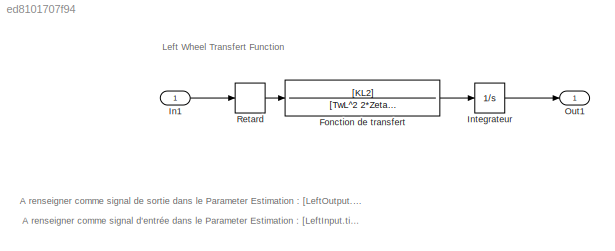
MODEL slx_ed8101707f94
KIND model
CONFIG AbsTol = auto
CONFIG FixedStep = 0.01
CONFIG MaxStep = auto
CONFIG MinStep = auto
CONFIG PostLoadFcn = load('LeftOutput_Measures.mat');\nload('LeftOutput_Measures.mat');\nParametres_Rover
CONFIG RelTol = 1e-3
CONFIG SampleTimeConstraint = Unconstrained
CONFIG Solver = ode3
CONFIG SolverMode = Auto
CONFIG SolverName = ode3
CONFIG StartTime = 0.0
CONFIG StopTime = 10
BLOCK [TransferFcn] Fonction de transfert
  Denominator = [TwL^2 2*ZetaL*TwL 1]
  Numerator = [KL2]
BLOCK [Inport] In1
  IconDisplay = Port number
BLOCK [Integrator] Integrateur
  Ports = [1, 1]
BLOCK [Outport] Out1
  IconDisplay = Port number
BLOCK [TransportDelay] Retard
  DelayTime = TdL2
  Ports = [1, 1]
ANNOTATION (root): A renseigner comme signal d'entrée dans le Parameter Estimation : [LeftInput.time,LeftInput.signals.values]
ANNOTATION (root): A renseigner comme signal de sortie dans le Parameter Estimation : [LeftOutput.time,LeftOutput.signals.values]
ANNOTATION (root): Left Wheel Transfert Function
LINE Fonction de transfert:1 -> Integrateur:1
LINE In1:1 -> Retard:1
LINE Integrateur:1 -> Out1:1
LINE Retard:1 -> Fonction de transfert:1
